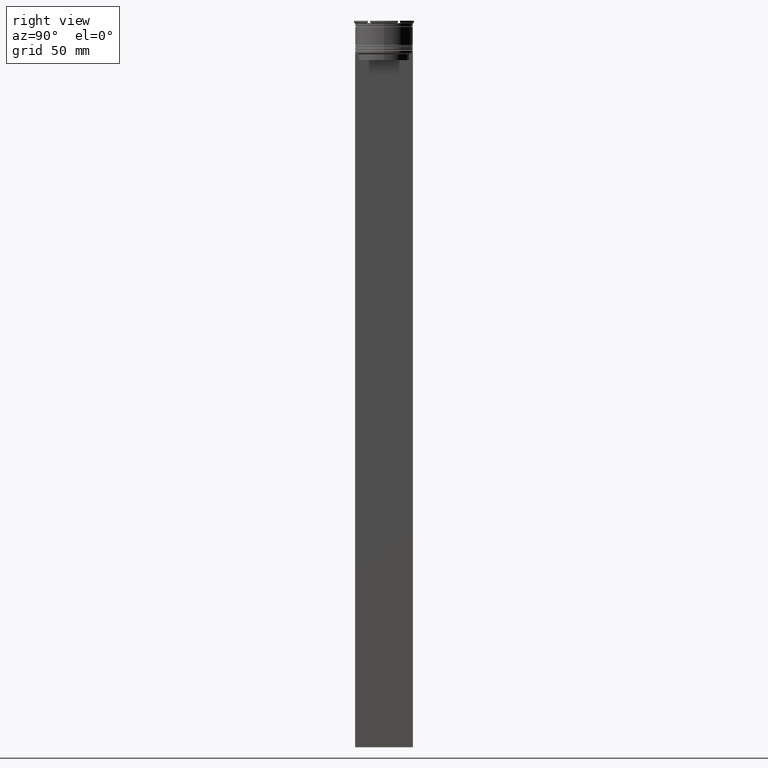
[diagram: clean part render]
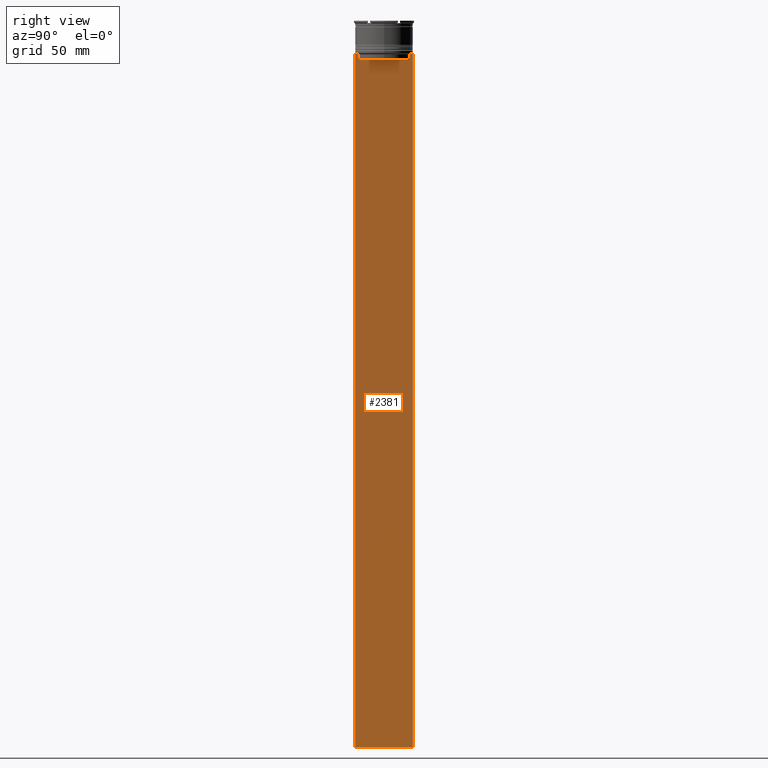
[diagram: same view with one face highlighted and labeled with its STEP entity id]
A machine part, right view. The second image highlights one B-rep face of the part: STEP entity #2381.
In plain terms, the highlighted planar face has unit normal (-1, 0, 0).
Its self-contained STEP definition (entity closure, byte-faithful):
#25 = ORIENTED_EDGE ( 'NONE', *, *, #1633, .T. ) ;
#57 = DIRECTION ( 'NONE',  ( 0.000000000000000000, -1.000000000000000000, 0.000000000000000000 ) ) ;
#77 = DIRECTION ( 'NONE',  ( 0.000000000000000000, 1.000000000000000000, 0.000000000000000000 ) ) ;
#104 = LINE ( 'NONE', #1255, #641 ) ;
#129 = ORIENTED_EDGE ( 'NONE', *, *, #1184, .T. ) ;
#157 = B_SPLINE_CURVE_WITH_KNOTS ( 'NONE', 3,
 ( #2655, #671, #1559, #2439 ),
 .UNSPECIFIED., .F., .F.,
 ( 4, 4 ),
 ( 0.05041323384703226551, 0.05112713601261605068 ),
 .UNSPECIFIED. ) ;
#163 = VERTEX_POINT ( 'NONE', #2300 ) ;
#166 = CARTESIAN_POINT ( 'NONE',  ( 0.5000000000000000000, -12.49999999999999289, -14.00000000000000178 ) ) ;
#181 = LINE ( 'NONE', #1962, #504 ) ;
#210 = ORIENTED_EDGE ( 'NONE', *, *, #2385, .F. ) ;
#224 = VECTOR ( 'NONE', #57, 1000.000000000000000 ) ;
#255 = LINE ( 'NONE', #703, #2091 ) ;
#351 = DIRECTION ( 'NONE',  ( 0.000000000000000000, 0.000000000000000000, 1.000000000000000000 ) ) ;
#364 = CARTESIAN_POINT ( 'NONE',  ( 0.5000000000000000000, -12.49999999999999289, -14.00000000000000178 ) ) ;
#418 = EDGE_CURVE ( 'NONE', #1755, #2504, #1700, .T. ) ;
#434 = CARTESIAN_POINT ( 'NONE',  ( 0.5000000000000000000, -10.88852607105296144, -17.00000000000000000 ) ) ;
#479 = CARTESIAN_POINT ( 'NONE',  ( 0.5000000000000000000, 11.38902980942626719, -14.00000000000000178 ) ) ;
#494 = VERTEX_POINT ( 'NONE', #2699 ) ;
#504 = VECTOR ( 'NONE', #1521, 1000.000000000000000 ) ;
#530 = CARTESIAN_POINT ( 'NONE',  ( 0.5000000000000000000, 12.50000000000000711, -314.0000000000000000 ) ) ;
#616 = CARTESIAN_POINT ( 'NONE',  ( 0.5000000000000000000, -12.49999999999999289, 11.01999200639360765 ) ) ;
#624 = ORIENTED_EDGE ( 'NONE', *, *, #1763, .T. ) ;
#641 = VECTOR ( 'NONE', #2135, 1000.000000000000000 ) ;
#671 = CARTESIAN_POINT ( 'NONE',  ( 0.5000000000000000000, -11.05536450423839234, -14.33333718996393102 ) ) ;
#685 = CARTESIAN_POINT ( 'NONE',  ( 0.5000000000000000000, -11.38902980942626719, -14.00000000000000178 ) ) ;
#701 = VERTEX_POINT ( 'NONE', #1339 ) ;
#703 = CARTESIAN_POINT ( 'NONE',  ( 0.5000000000000000000, -10.88852607105296322, 0.000000000000000000 ) ) ;
#739 = CARTESIAN_POINT ( 'NONE',  ( 0.5000000000000000000, 10.90000000000000213, -17.00000000000000000 ) ) ;
#742 = CARTESIAN_POINT ( 'NONE',  ( 0.5000000000000000000, -12.49999999999999289, -14.00000000000000178 ) ) ;
#763 = DIRECTION ( 'NONE',  ( 0.000000000000000000, -1.000000000000000000, 0.000000000000000000 ) ) ;
#799 = DIRECTION ( 'NONE',  ( -1.000000000000000000, 0.000000000000000000, 0.000000000000000000 ) ) ;
#875 = DIRECTION ( 'NONE',  ( 0.000000000000000000, -1.000000000000000000, 0.000000000000000000 ) ) ;
#924 = VERTEX_POINT ( 'NONE', #1609 ) ;
#931 = B_SPLINE_CURVE_WITH_KNOTS ( 'NONE', 3,
 ( #479, #1826, #1603, #1381 ),
 .UNSPECIFIED., .F., .F.,
 ( 4, 4 ),
 ( 0.01935560801904634073, 0.02006307108468586772 ),
 .UNSPECIFIED. ) ;
#986 = DIRECTION ( 'NONE',  ( -0.000000000000000000, -0.000000000000000000, 1.000000000000000000 ) ) ;
#991 = ORIENTED_EDGE ( 'NONE', *, *, #2570, .T. ) ;
#1057 = EDGE_LOOP ( 'NONE', ( #2561, #2536, #2441, #1712, #991, #25, #2437, #1213, #1638, #624, #210, #129 ) ) ;
#1059 = DIRECTION ( 'NONE',  ( 0.000000000000000000, -1.000000000000000000, 0.000000000000000000 ) ) ;
#1160 = VERTEX_POINT ( 'NONE', #685 ) ;
#1184 = EDGE_CURVE ( 'NONE', #163, #1755, #1765, .T. ) ;
#1213 = ORIENTED_EDGE ( 'NONE', *, *, #2331, .T. ) ;
#1221 = LINE ( 'NONE', #739, #2608 ) ;
#1243 = FACE_OUTER_BOUND ( 'NONE', #1057, .T. ) ;
#1255 = CARTESIAN_POINT ( 'NONE',  ( 0.5000000000000000000, 12.50000000000000711, 11.01999200639360765 ) ) ;
#1298 = VERTEX_POINT ( 'NONE', #2102 ) ;
#1314 = EDGE_CURVE ( 'NONE', #924, #2835, #1221, .T. ) ;
#1317 = CARTESIAN_POINT ( 'NONE',  ( 0.5000000000000000000, 10.88852607105296322, 0.000000000000000000 ) ) ;
#1339 = CARTESIAN_POINT ( 'NONE',  ( 0.5000000000000000000, -12.49999999999999289, -14.00000000000000178 ) ) ;
#1381 = CARTESIAN_POINT ( 'NONE',  ( 0.5000000000000000000, 10.88852607105296322, -14.50000000000000000 ) ) ;
#1419 = CARTESIAN_POINT ( 'NONE',  ( 0.5000000000000000000, 10.88852607105296322, -14.50000000000000000 ) ) ;
#1492 = DIRECTION ( 'NONE',  ( 0.000000000000000000, -1.000000000000000000, 0.000000000000000000 ) ) ;
#1521 = DIRECTION ( 'NONE',  ( 0.000000000000000000, 0.000000000000000000, -1.000000000000000000 ) ) ;
#1552 = EDGE_CURVE ( 'NONE', #2504, #1649, #931, .T. ) ;
#1559 = CARTESIAN_POINT ( 'NONE',  ( 0.5000000000000000000, -11.22219891450652973, -14.16667035398018903 ) ) ;
#1580 = CARTESIAN_POINT ( 'NONE',  ( 0.5000000000000000000, -12.49999999999999289, -14.00000000000000178 ) ) ;
#1603 = CARTESIAN_POINT ( 'NONE',  ( 0.5000000000000000000, 11.05536450345590538, -14.33333719074559376 ) ) ;
#1609 = CARTESIAN_POINT ( 'NONE',  ( 0.5000000000000000000, 10.88852607105296144, -17.00000000000000000 ) ) ;
#1610 = LINE ( 'NONE', #2084, #2541 ) ;
#1633 = EDGE_CURVE ( 'NONE', #494, #1160, #157, .T. ) ;
#1638 = ORIENTED_EDGE ( 'NONE', *, *, #2534, .T. ) ;
#1649 = VERTEX_POINT ( 'NONE', #1419 ) ;
#1689 = VERTEX_POINT ( 'NONE', #530 ) ;
#1700 = LINE ( 'NONE', #166, #2647 ) ;
#1712 = ORIENTED_EDGE ( 'NONE', *, *, #1314, .T. ) ;
#1750 = LINE ( 'NONE', #1317, #2362 ) ;
#1755 = VERTEX_POINT ( 'NONE', #2709 ) ;
#1763 = EDGE_CURVE ( 'NONE', #1298, #1689, #1610, .T. ) ;
#1765 = LINE ( 'NONE', #1580, #2065 ) ;
#1815 = VECTOR ( 'NONE', #1492, 1000.000000000000000 ) ;
#1826 = CARTESIAN_POINT ( 'NONE',  ( 0.5000000000000000000, 11.22219891375843304, -14.16667035472756808 ) ) ;
#1938 = CARTESIAN_POINT ( 'NONE',  ( 0.5000000000000000000, -12.38991525394746773, -14.00000000000000178 ) ) ;
#1942 = PLANE ( 'NONE',  #2179 ) ;
#1962 = CARTESIAN_POINT ( 'NONE',  ( 0.5000000000000000000, -12.49999999999999289, 11.01999200639360765 ) ) ;
#2007 = CARTESIAN_POINT ( 'NONE',  ( 0.5000000000000000000, 11.38902980942626719, -14.00000000000000178 ) ) ;
#2065 = VECTOR ( 'NONE', #875, 1000.000000000000000 ) ;
#2084 = CARTESIAN_POINT ( 'NONE',  ( 0.5000000000000000000, -12.49999999999999289, -314.0000000000000000 ) ) ;
#2091 = VECTOR ( 'NONE', #986, 1000.000000000000000 ) ;
#2102 = CARTESIAN_POINT ( 'NONE',  ( 0.5000000000000000000, -12.49999999999999289, -314.0000000000000000 ) ) ;
#2135 = DIRECTION ( 'NONE',  ( 0.000000000000000000, 0.000000000000000000, -1.000000000000000000 ) ) ;
#2179 = AXIS2_PLACEMENT_3D ( 'NONE', #616, #799, #351 ) ;
#2225 = DIRECTION ( 'NONE',  ( 0.000000000000000000, 0.000000000000000000, -1.000000000000000000 ) ) ;
#2300 = CARTESIAN_POINT ( 'NONE',  ( 0.5000000000000000000, 12.50000000000000711, -14.00000000000000178 ) ) ;
#2331 = EDGE_CURVE ( 'NONE', #2692, #701, #2822, .T. ) ;
#2362 = VECTOR ( 'NONE', #2225, 1000.000000000000000 ) ;
#2381 = ADVANCED_FACE ( 'NONE', ( #1243 ), #1942, .F. ) ;
#2385 = EDGE_CURVE ( 'NONE', #163, #1689, #104, .T. ) ;
#2437 = ORIENTED_EDGE ( 'NONE', *, *, #2562, .T. ) ;
#2439 = CARTESIAN_POINT ( 'NONE',  ( 0.5000000000000000000, -11.38902980942626719, -14.00000000000000178 ) ) ;
#2441 = ORIENTED_EDGE ( 'NONE', *, *, #2468, .T. ) ;
#2468 = EDGE_CURVE ( 'NONE', #1649, #924, #1750, .T. ) ;
#2504 = VERTEX_POINT ( 'NONE', #2007 ) ;
#2528 = LINE ( 'NONE', #742, #224 ) ;
#2534 = EDGE_CURVE ( 'NONE', #701, #1298, #181, .T. ) ;
#2536 = ORIENTED_EDGE ( 'NONE', *, *, #1552, .T. ) ;
#2541 = VECTOR ( 'NONE', #77, 1000.000000000000000 ) ;
#2561 = ORIENTED_EDGE ( 'NONE', *, *, #418, .T. ) ;
#2562 = EDGE_CURVE ( 'NONE', #1160, #2692, #2528, .T. ) ;
#2570 = EDGE_CURVE ( 'NONE', #2835, #494, #255, .T. ) ;
#2608 = VECTOR ( 'NONE', #763, 1000.000000000000000 ) ;
#2647 = VECTOR ( 'NONE', #1059, 1000.000000000000000 ) ;
#2655 = CARTESIAN_POINT ( 'NONE',  ( 0.5000000000000000000, -10.88852607105296322, -14.50000000000000000 ) ) ;
#2692 = VERTEX_POINT ( 'NONE', #1938 ) ;
#2699 = CARTESIAN_POINT ( 'NONE',  ( 0.5000000000000000000, -10.88852607105296322, -14.50000000000000000 ) ) ;
#2709 = CARTESIAN_POINT ( 'NONE',  ( 0.5000000000000000000, 12.38991525394746773, -14.00000000000000178 ) ) ;
#2822 = LINE ( 'NONE', #364, #1815 ) ;
#2835 = VERTEX_POINT ( 'NONE', #434 ) ;